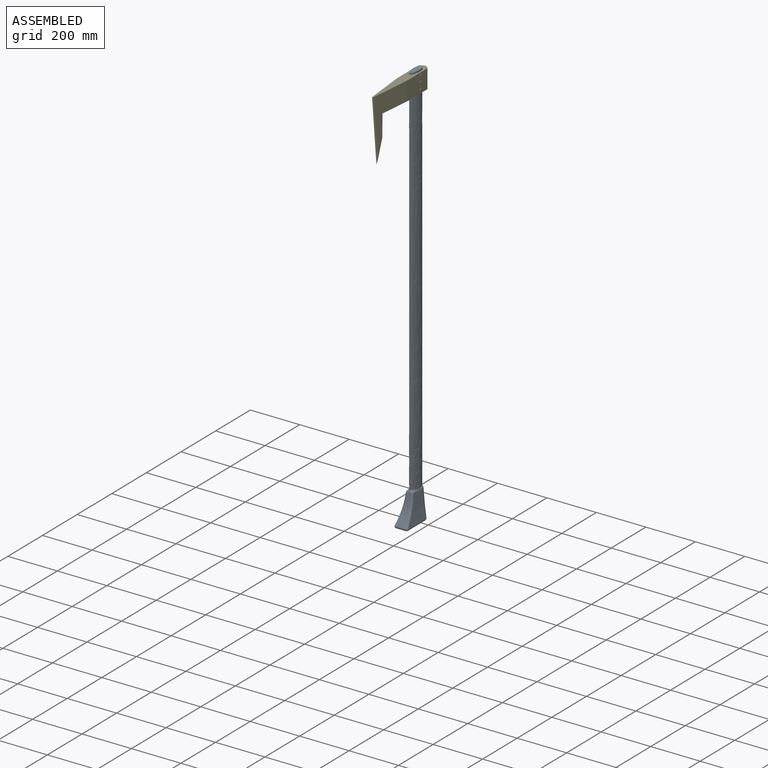
[diagram: assembled view]
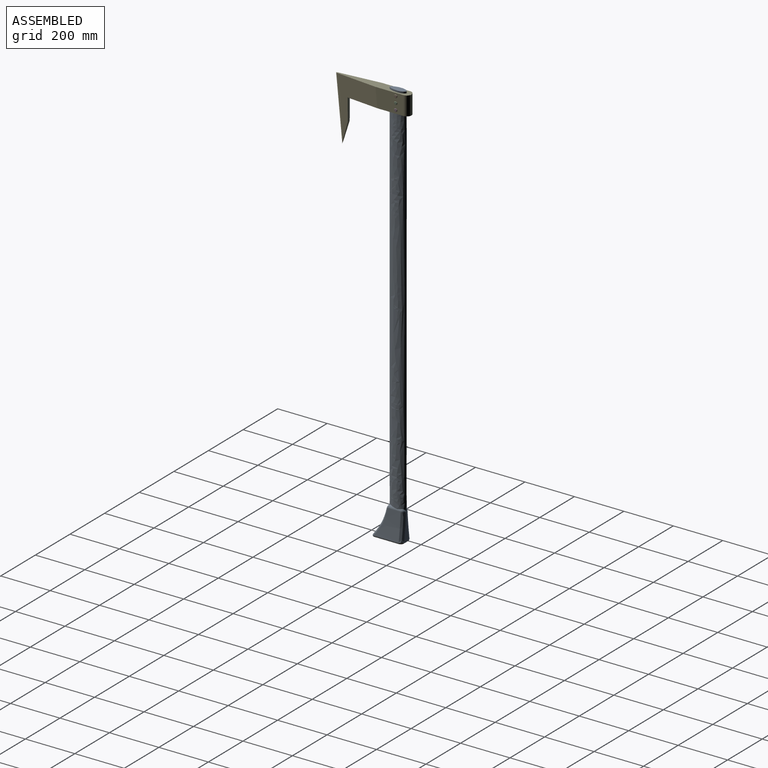
[diagram: assembled view, second angle]
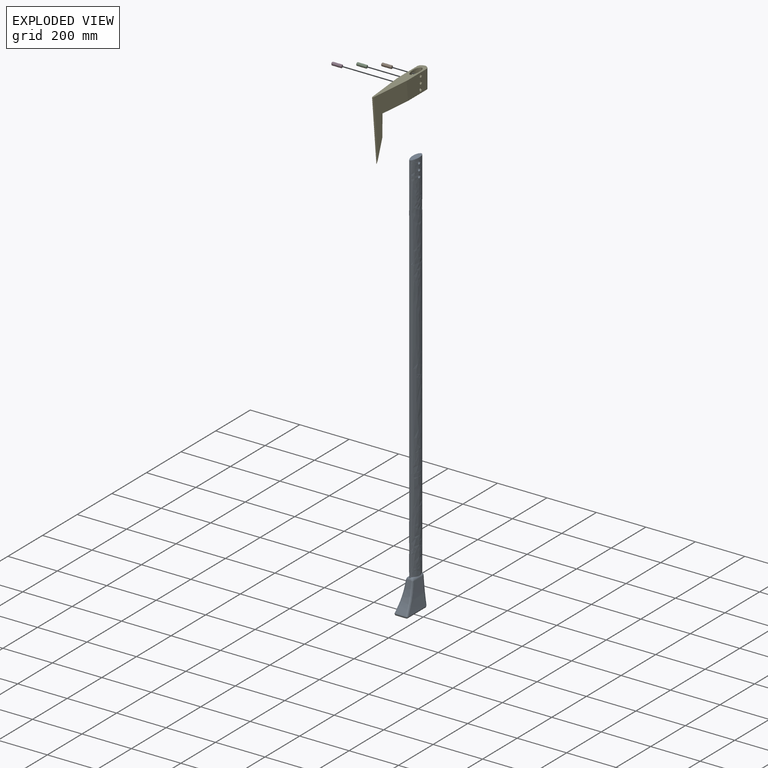
[diagram: exploded view]
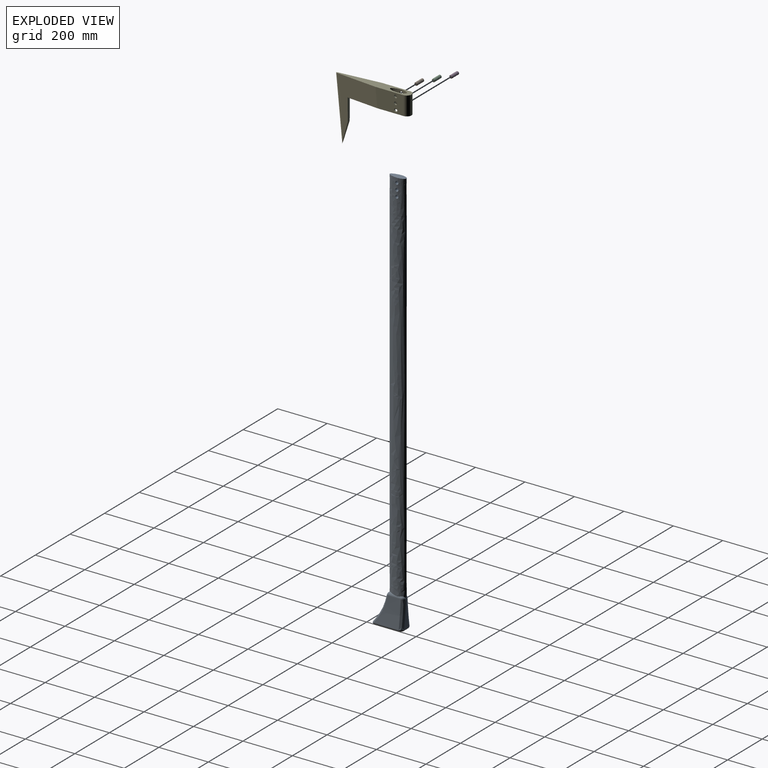
[diagram: exploded view, second angle]
ASSEMBLY  parts=5 mates=4
PART A: 38 faces, bbox 55.9x120.9x1651 mm
  f0: plane 8.22x1.13mm, normal (0,0,-1), area 5mm2, adj f4,f34,f35
  f1: plane 107.96x28.21mm, normal (0,1,0), area 1590.7mm2, adj f12,f14,f15,f17,f31
  f2: extruded ~106.97x48.2mm, area 3298.7mm2, adj f10,f20,f21,f22,f23,f24
  f3: extruded ~1536.7x67.32mm, area 116020mm2, adj f4,f5,f10,f11,f16,f17,f19,f35
  f4: extruded ~1536.7x67.32mm, area 115675.3mm2, adj f0,f3,f5,f9,f10,f12,f13,f18
  f5: plane 67.41x30.2mm, normal (0,0,1), area 1317.7mm2, adj f3,f4
  f6: plane 108.13x41.05mm, normal (0,0,-1), area 4420.8mm2, adj f23,f27,f28,f29,f30,f31
  f7: extruded ~107.97x101.78mm, area 8265.4mm2, adj f11,f15,f24,f28
  f8: extruded ~107.97x101.78mm, area 8265.4mm2, adj f9,f14,f22,f27
  f9: cylinder r=12.7mm len=52.71mm, axis (0,1,0), area 461.1mm2, adj f4,f8,f13,f18,f20
  f10: cylinder r=12.7mm len=16.82mm, axis (-1,0,0), area 140.1mm2, adj f2,f3,f4,f18,f19
  f11: cylinder r=12.7mm len=52.71mm, axis (0,1,0), area 461.1mm2, adj f3,f7,f16,f19,f21
  f12: cylinder r=12.7mm len=3.55mm, axis (1,0,0), area 4mm2, adj f1,f4,f13
  f13: sphere r=12.7mm, area 176.6mm2, adj f4,f9,f12,f14
  f14: bspline ~126.84x26.28mm, area 2164.9mm2, adj f1,f8,f13,f29
  f15: bspline ~126.84x26.28mm, area 2164.9mm2, adj f1,f7,f16,f30
  f16: sphere r=12.7mm, area 176.6mm2, adj f3,f11,f15,f17
  f17: cylinder r=12.7mm len=3.55mm, axis (1,0,0), area 4mm2, adj f1,f3,f16
  f18: bspline ~10.89x10.89mm, area 94.3mm2, adj f4,f9,f10,f20
  f19: bspline ~10.89x10.89mm, area 94.3mm2, adj f3,f10,f11,f21
  f20: bspline ~8.43x7.22mm, area 14.2mm2, adj f2,f9,f18,f22
  f21: bspline ~8.43x7.22mm, area 14.2mm2, adj f2,f11,f19,f24
  f22: bspline ~116.58x56.53mm, area 1149.5mm2, adj f2,f8,f20,f25
  f23: cylinder r=6.35mm len=41.05mm, axis (-1,0,0), area 573.2mm2, adj f2,f6,f25,f26
  f24: bspline ~116.58x56.53mm, area 1149.5mm2, adj f2,f7,f21,f26
  f25: sphere r=6.35mm, area 60.2mm2, adj f22,f23,f27
  f26: sphere r=6.35mm, area 93.4mm2, adj f23,f24,f28
  f27: cylinder r=6.35mm len=101.78mm, axis (0,1,0), area 1113.9mm2, adj f6,f8,f25,f29
  f28: cylinder r=6.35mm len=101.78mm, axis (0,1,0), area 1113.9mm2, adj f6,f7,f26,f30
  f29: bspline ~16.69x15.81mm, area 175.8mm2, adj f6,f14,f27,f31
  f30: bspline ~16.69x13.54mm, area 175.7mm2, adj f6,f15,f28,f31
  f31: cylinder r=6.35mm len=28.2mm, axis (-1,0,0), area 281.3mm2, adj f1,f6,f29,f30
  f32: plane 8.84x1.36mm, normal (0,0,-1), area 6.7mm2, adj f4,f34,f35
  f33: plane 28.6x1.66mm, normal (0,0,1), area 26.9mm2, adj f4,f34
  f34: plane 28.36x15.5mm, normal (-1,0,0), area 341.7mm2, adj f0,f4,f32,f33,f35
  f35: cylinder r=6.35mm len=25.46mm, axis (1,0,0), area 981.4mm2, adj f0,f3,f4,f32,f34
  f36: cylinder r=6.35mm len=25.58mm, axis (1,0,0), area 1020.7mm2, adj f3,f4
  f37: cylinder r=6.35mm len=25.58mm, axis (1,0,0), area 1020.7mm2, adj f3,f4
PART B: 5 faces, bbox 40.6x12.7x12.7 mm
  f0: cylinder r=6.35mm len=38.1mm, axis (-1,0,0), area 1520.1mm2, adj f3,f4
  f1: plane 10.16x10.16mm, normal (1,0,0), area 81.1mm2, adj f4
  f2: plane 10.16x10.16mm, normal (-1,0,0), area 81.1mm2, adj f3
  f3: cone r=6.35mm half-angle=45deg, axis (1,0,0), area 64.5mm2, adj f0,f2
  f4: cone r=5.08mm half-angle=45deg, axis (-1,0,0), area 64.5mm2, adj f0,f1
PART C: same geometry as B
PART D: same geometry as B
PART E: 21 faces, bbox 38.1x304.8x252.8 mm
  f0: plane 304.8x38.1mm, normal (0,0,1), area 7222.2mm2, adj f4,f5,f6,f7,f8,f9,f10,f11
  f1: plane 254x38.1mm, normal (0,0,-1), area 6574.8mm2, adj f3,f4,f5,f10,f11,f12,f13,f14
  f2: plane 87.68x25.95mm, normal (0,0.96,-0.28), area 684.1mm2, adj f3,f6,f7,f8,f9,f10,f11
  f3: plane 88.9x12.82mm, normal (0,1,0), area 1063.3mm2, adj f1,f2,f10,f11
  f4: plane 113.47x76.2mm, normal (1,0,0), area 7981.2mm2, adj f0,f1,f11,f12,f18,f19,f20
  f5: plane 113.47x76.2mm, normal (-1,0,0), area 7981.2mm2, adj f0,f1,f10,f12,f15,f16,f17
  f6: plane 252.78x25.67mm, normal (-0.71,-0.7,-0.07), area 389.2mm2, adj f0,f2,f7,f8
  f7: plane 252.78x25.67mm, normal (0.71,-0.7,-0.07), area 389.2mm2, adj f0,f2,f6,f9
  f8: plane 250x27.4mm, normal (-0.92,-0.38,-0.04), area 998.1mm2, adj f0,f2,f6,f10
  f9: plane 250x27.4mm, normal (0.92,-0.38,-0.04), area 998.1mm2, adj f0,f2,f7,f11
  f10: plane 240.47x174.91mm, normal (-1,-0.1,-0.01), area 16989mm2, adj f0,f1,f2,f3,f5,f8
  f11: plane 240.47x174.91mm, normal (1,-0.1,-0.01), area 16989mm2, adj f0,f1,f2,f3,f4,f9
  f12: cylinder r=19.05mm len=76.2mm, axis (0,0,-1), area 4560.4mm2, adj f0,f1,f4,f5
  f13: extruded ~76.2x67.32mm, area 5424.4mm2, adj f0,f1,f14,f18,f19,f20
  f14: extruded ~76.2x67.32mm, area 5424.4mm2, adj f0,f1,f13,f15,f16,f17
  f15: cylinder r=6.35mm len=12.7mm, axis (1,0,0), area 256.3mm2, adj f5,f14
  f16: cylinder r=6.35mm len=12.7mm, axis (1,0,0), area 256.3mm2, adj f5,f14
  f17: cylinder r=6.35mm len=12.7mm, axis (1,0,0), area 256.3mm2, adj f5,f14
  f18: cylinder r=6.35mm len=12.7mm, axis (1,0,0), area 256.3mm2, adj f4,f13
  f19: cylinder r=6.35mm len=12.7mm, axis (1,0,0), area 256.3mm2, adj f4,f13
  f20: cylinder r=6.35mm len=12.7mm, axis (1,0,0), area 256.3mm2, adj f4,f13
PLACE A t=(-2097.27,-528,-109.82)mm
PLACE B t=(-2097.08,-502.73,1394.96)mm
PLACE C t=(-2097.08,-502.73,1369.56)mm
PLACE D t=(-2097.08,-502.73,1344.16)mm
PLACE E t=(-2095.81,-606.17,1373.39)mm
MATE fastened D.f0 <-> E.f15  axis (1,0,0) through (-2095.81,-502.73,1344.16)mm
MATE fastened B.f0 <-> E.f17  axis (1,0,0) through (-2095.81,-502.73,1394.96)mm
MATE fastened C.f0 <-> E.f16  axis (1,0,0) through (-2095.81,-502.73,1369.56)mm
MATE fastened A.f33 <-> E.f1  axis (0,0,1) through (-2089.55,-501.75,1331.46)mm
